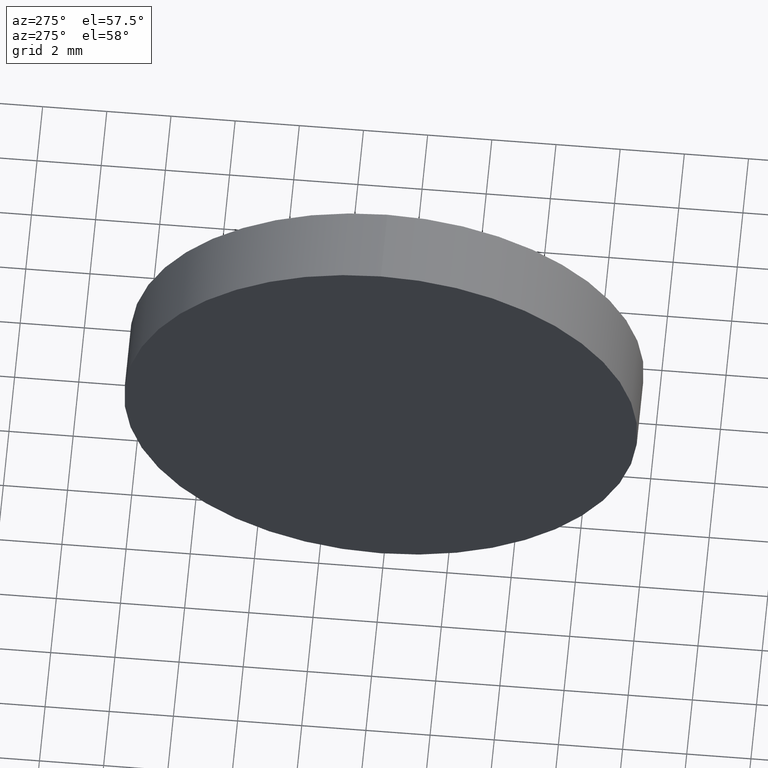
[diagram: clean part render]
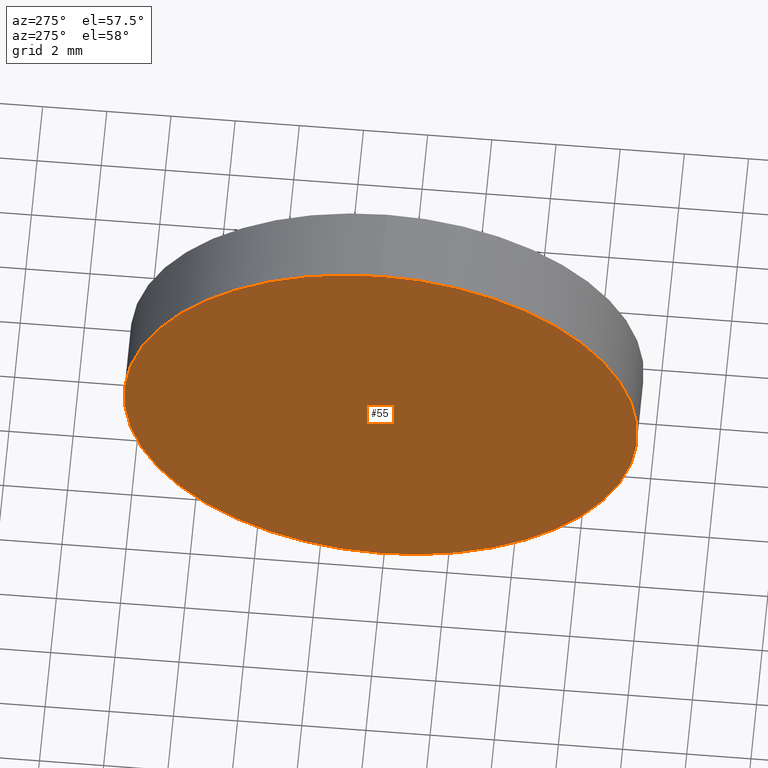
[diagram: same view with one face highlighted and labeled with its STEP entity id]
A machine part, auxiliary view. The second image highlights one B-rep face of the part: STEP entity #55.
In plain terms, the highlighted planar face has unit normal (1, 0, 0).
Its self-contained STEP definition (entity closure, byte-faithful):
#4 = AXIS2_PLACEMENT_3D ( 'NONE', #8, #86, #18 ) ;
#8 = CARTESIAN_POINT ( 'NONE',  ( 44.31915269315436500, 26.08904114919495900, 0.0000000000000000000 ) ) ;
#16 = AXIS2_PLACEMENT_3D ( 'NONE', #115, #64, #155 ) ;
#18 = DIRECTION ( 'NONE',  ( 0.0000000000000000000, 0.0000000000000000000, 1.000000000000000000 ) ) ;
#29 = DIRECTION ( 'NONE',  ( 1.000000000000000000, 0.0000000000000000000, 0.0000000000000000000 ) ) ;
#43 = EDGE_CURVE ( 'NONE', #99, #146, #94, .T. ) ;
#53 = ORIENTED_EDGE ( 'NONE', *, *, #153, .T. ) ;
#55 = ADVANCED_FACE ( 'NONE', ( #138 ), #124, .F. ) ;
#57 = AXIS2_PLACEMENT_3D ( 'NONE', #98, #29, #59 ) ;
#59 = DIRECTION ( 'NONE',  ( 0.0000000000000000000, 0.0000000000000000000, -1.000000000000000000 ) ) ;
#60 = CARTESIAN_POINT ( 'NONE',  ( 44.31915269315436500, 26.08904114919495900, -8.000000000000003600 ) ) ;
#64 = DIRECTION ( 'NONE',  ( -1.000000000000000000, -0.0000000000000000000, -0.0000000000000000000 ) ) ;
#86 = DIRECTION ( 'NONE',  ( -1.000000000000000000, -0.0000000000000000000, -0.0000000000000000000 ) ) ;
#94 = CIRCLE ( 'NONE', #4, 8.000000000000003600 ) ;
#98 = CARTESIAN_POINT ( 'NONE',  ( 44.31915269315436500, 26.08904114919495900, 0.0000000000000000000 ) ) ;
#99 = VERTEX_POINT ( 'NONE', #60 ) ;
#115 = CARTESIAN_POINT ( 'NONE',  ( 44.31915269315436500, 26.08904114919495900, 0.0000000000000000000 ) ) ;
#124 = PLANE ( 'NONE',  #57 ) ;
#138 = FACE_OUTER_BOUND ( 'NONE', #148, .T. ) ;
#141 = ORIENTED_EDGE ( 'NONE', *, *, #43, .T. ) ;
#146 = VERTEX_POINT ( 'NONE', #157 ) ;
#148 = EDGE_LOOP ( 'NONE', ( #53, #141 ) ) ;
#151 = CIRCLE ( 'NONE', #16, 8.000000000000003600 ) ;
#153 = EDGE_CURVE ( 'NONE', #146, #99, #151, .T. ) ;
#155 = DIRECTION ( 'NONE',  ( 0.0000000000000000000, 0.0000000000000000000, 1.000000000000000000 ) ) ;
#157 = CARTESIAN_POINT ( 'NONE',  ( 44.31915269315436500, 26.08904114919495900, 8.000000000000003600 ) ) ;